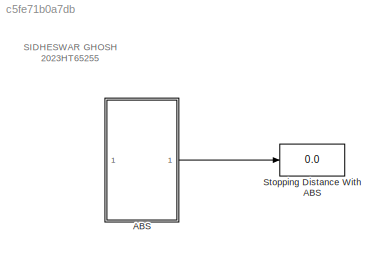
MODEL slx_c5fe71b0a7db
KIND model
CONFIG AbsTol = auto
CONFIG EnableMultiTasking = off
CONFIG FixedStep = auto
CONFIG MaxStep = auto
CONFIG MinStep = auto
CONFIG RelTol = 1e-3
CONFIG SampleTimeConstraint = Unconstrained
CONFIG SolverName = VariableStepAuto
CONFIG StartTime = 0.0
CONFIG StopTime = 25
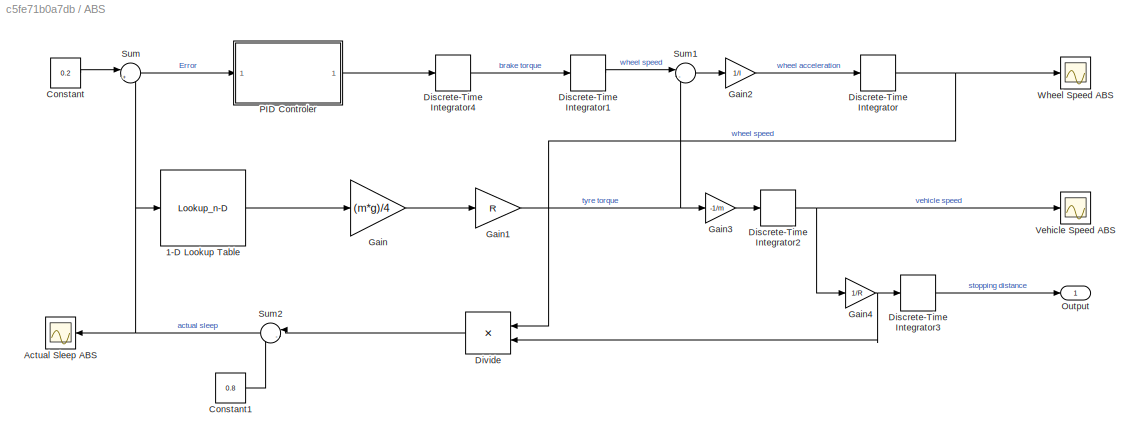
BLOCK [SubSystem] ABS
BLOCK [Lookup_n-D] ABS/1-D Lookup Table
  BreakpointsForDimension1 = [0\n0.05\n0.1\n0.15\n0.2\n0.25\n0.35\n0.4\n0.45\n0.5\n0.55\n0.6\n0.65\n0.7\n0.75\n0.8\n0.85\n0.9\n0.95\n1\n]
  InputPortMap = u0
  InternalRulePriority = Speed
  NumberOfTableDimensions = 1
  RndMeth = Simplest
  Table = tanh([0\n0.4\n0.8\n0.97\n1\n0.98\n0.96\n0.94\n0.92\n0.9\n0.855\n0.83\n0.81\n0.79\n0.77\n0.75\n0.73\n0.72\n0.71\n0.7\n])
BLOCK [Scope] ABS/Actual Sleep ABS
  Floating = off
  NameLocation = top
  NumInputPorts = 1
  ScopeSpecificationString = Simulink.scopes.TimeScopeBlockCfg('CurrentConfiguration', extmgr.ConfigurationSet(extmgr.Configuration('Core','General UI',true),extmgr.Configuration('Core','Source UI',true),extmgr.Configuration('Sources','WiredSimulink',true,'DataLoggingVariableName','ScopeData3'),extmgr.Configuration('Visuals','Time Domain',true,'SerializedDisplays',{struct('MinYLimReal','-0.25001','MaxYLimReal','0.25013','YLab...<+1491ch>
BLOCK [Constant] ABS/Constant
  SampleTime = -1
  Value = 0.2
BLOCK [Constant] ABS/Constant1
  SampleTime = -1
  Value = 0.8
BLOCK [DiscreteIntegrator] ABS/Discrete-Time Integrator
  ICPrevOutput = DiscIntNeverNeededParam
  ICPrevScaledInput = DiscIntNeverNeededParam
  InitialConditionSetting = Auto
  SampleTime = 0.001
BLOCK [DiscreteIntegrator] ABS/Discrete-Time Integrator1
  ICPrevOutput = DiscIntNeverNeededParam
  ICPrevScaledInput = DiscIntNeverNeededParam
  InitialConditionSetting = Auto
  SampleTime = 0.001
BLOCK [DiscreteIntegrator] ABS/Discrete-Time Integrator2
  ICPrevOutput = DiscIntNeverNeededParam
  ICPrevScaledInput = DiscIntNeverNeededParam
  InitialConditionSetting = Auto
  SampleTime = 0.001
BLOCK [DiscreteIntegrator] ABS/Discrete-Time Integrator3
  ICPrevOutput = DiscIntNeverNeededParam
  ICPrevScaledInput = DiscIntNeverNeededParam
  InitialConditionSetting = Auto
  SampleTime = 0.001
BLOCK [DiscreteIntegrator] ABS/Discrete-Time Integrator4
  ICPrevOutput = DiscIntNeverNeededParam
  ICPrevScaledInput = DiscIntNeverNeededParam
  InitialConditionSetting = Auto
  SampleTime = 0.001
BLOCK [Product] ABS/Divide
  Inputs = */
  NameLocation = top
BLOCK [Gain] ABS/Gain
  Gain = (m*g)/4
BLOCK [Gain] ABS/Gain1
  Gain = R
BLOCK [Gain] ABS/Gain2
  Gain = 1/I
BLOCK [Gain] ABS/Gain3
  Gain = -1/m
BLOCK [Gain] ABS/Gain4
  Gain = 1/R
BLOCK [Outport] ABS/Output
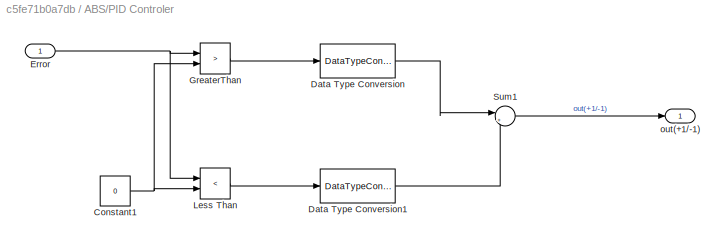
BLOCK [SubSystem] ABS/PID Controler
BLOCK [Constant] ABS/PID Controler/Constant1
  SampleTime = -1
  Value = 0
BLOCK [DataTypeConversion] ABS/PID Controler/Data Type Conversion
  RndMeth = Floor
  SaturateOnIntegerOverflow = off
BLOCK [DataTypeConversion] ABS/PID Controler/Data Type Conversion1
  RndMeth = Floor
  SaturateOnIntegerOverflow = off
BLOCK [Inport] ABS/PID Controler/Error
BLOCK [RelationalOperator] ABS/PID Controler/GreaterThan
  InputSameDT = off
  Operator = >
  OutDataTypeStr = boolean
  RndMeth = Simplest
BLOCK [RelationalOperator] ABS/PID Controler/Less Than
  InputSameDT = off
  Operator = <
  OutDataTypeStr = boolean
  RndMeth = Simplest
BLOCK [Sum] ABS/PID Controler/Sum1
  Inputs = |+-
BLOCK [Outport] ABS/PID Controler/out(+1//-1)
BLOCK [Sum] ABS/Sum
  Inputs = |+-
BLOCK [Sum] ABS/Sum1
  Inputs = |-+
BLOCK [Sum] ABS/Sum2
  Inputs = |-+
  NameLocation = top
BLOCK [Scope] ABS/Vehicle Speed ABS
  Floating = off
  NumInputPorts = 1
  ScopeSpecificationString = Simulink.scopes.TimeScopeBlockCfg('CurrentConfiguration', extmgr.ConfigurationSet(extmgr.Configuration('Core','General UI',true),extmgr.Configuration('Core','Source UI',true),extmgr.Configuration('Sources','WiredSimulink',true,'DataLoggingVariableName','ScopeData1'),extmgr.Configuration('Visuals','Time Domain',true,'SerializedDisplays',{struct('MinYLimReal','-1.00000','MaxYLimReal','1.00000','YLab...<+1518ch>
BLOCK [Scope] ABS/Wheel Speed ABS
  Floating = off
  NumInputPorts = 1
  ScopeSpecificationString = Simulink.scopes.TimeScopeBlockCfg('CurrentConfiguration', extmgr.ConfigurationSet(extmgr.Configuration('Core','General UI',true),extmgr.Configuration('Core','Source UI',true),extmgr.Configuration('Sources','WiredSimulink',true),extmgr.Configuration('Visuals','Time Domain',true,'SerializedDisplays',{struct('MinYLimReal','-1.00000','MaxYLimReal','1.00000','YLabelReal','','MinYLimMag','0.00000','MaxY...<+1437ch>
BLOCK [Display] Stopping Distance With ABS
  Decimation = 1
ANNOTATION (root): SIDHESWAR GHOSH 2023HT65255
LINE ABS/1-D Lookup Table:1 -> ABS/Gain:1
LINE ABS/Constant1:1 -> ABS/Sum2:2
LINE ABS/Constant:1 -> ABS/Sum:1
LINE ABS/Discrete-Time Integrator1:1 -> ABS/Sum1:1
NET ABS/Discrete-Time Integrator2:1 -> ABS/Gain4:1, ABS/Vehicle Speed ABS:1
LINE ABS/Discrete-Time Integrator3:1 -> ABS/Output:1
LINE ABS/Discrete-Time Integrator4:1 -> ABS/Discrete-Time Integrator1:1
NET ABS/Discrete-Time Integrator:1 -> ABS/Divide:1, ABS/Wheel Speed ABS:1
LINE ABS/Divide:1 -> ABS/Sum2:1
NET ABS/Gain1:1 -> ABS/Gain3:1, ABS/Sum1:2
LINE ABS/Gain2:1 -> ABS/Discrete-Time Integrator:1
LINE ABS/Gain3:1 -> ABS/Discrete-Time Integrator2:1
NET ABS/Gain4:1 -> ABS/Discrete-Time Integrator3:1, ABS/Divide:2
LINE ABS/Gain:1 -> ABS/Gain1:1
NET ABS/PID Controler/Constant1:1 -> ABS/PID Controler/GreaterThan:2, ABS/PID Controler/Less Than:2
LINE ABS/PID Controler/Data Type Conversion1:1 -> ABS/PID Controler/Sum1:2
LINE ABS/PID Controler/Data Type Conversion:1 -> ABS/PID Controler/Sum1:1
NET ABS/PID Controler/Error:1 -> ABS/PID Controler/GreaterThan:1, ABS/PID Controler/Less Than:1
LINE ABS/PID Controler/GreaterThan:1 -> ABS/PID Controler/Data Type Conversion:1
LINE ABS/PID Controler/Less Than:1 -> ABS/PID Controler/Data Type Conversion1:1
LINE ABS/PID Controler/Sum1:1 -> ABS/PID Controler/out(+1//-1):1
LINE ABS/PID Controler:1 -> ABS/Discrete-Time Integrator4:1
LINE ABS/Sum1:1 -> ABS/Gain2:1
NET ABS/Sum2:1 -> ABS/1-D Lookup Table:1, ABS/Actual Sleep ABS:1, ABS/Sum:2
LINE ABS/Sum:1 -> ABS/PID Controler:1
LINE ABS:1 -> Stopping Distance With ABS:1
note: NET lines group one-source signal fan-out (src -> all destinations, sorted); 1:1 wires keep LINE
